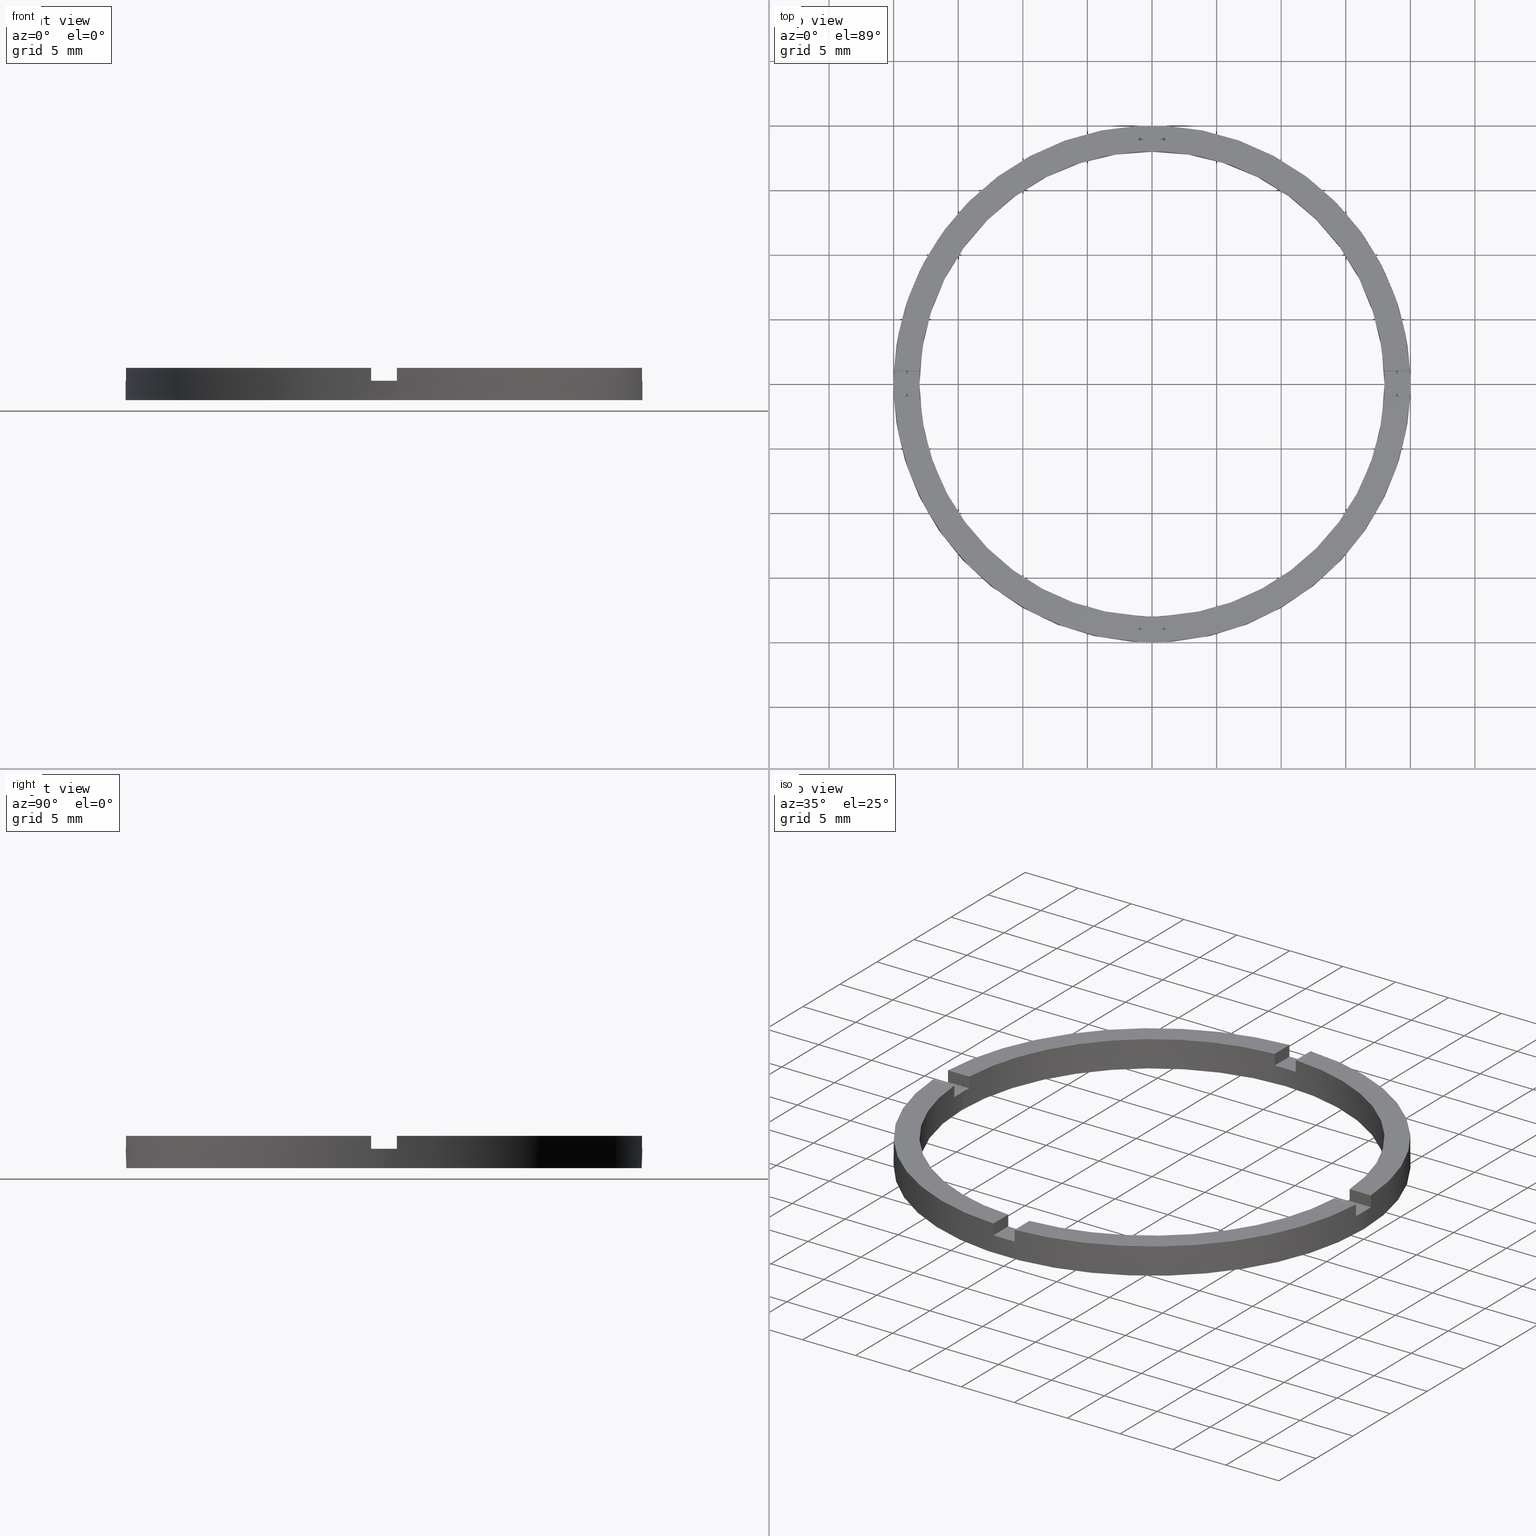
[diagram: canonical four-view strip — front | top / right | iso, engineering-drawing reading convention]
A machine part, canonical four-view strip (front | top / right | iso — engineering-drawing reading convention). The complete STEP part file that produces these views, byte-faithful:
ISO-10303-21;
HEADER;
FILE_DESCRIPTION (( 'STEP AP203' ),
    '1' );
FILE_NAME ('514085.step',
    '2024-12-26T02:36:06',
    ( 'MSI' ),
    ( '' ),
    'SwSTEP 2.0',
    'SolidWorks 2020',
    '' );
FILE_SCHEMA (( 'CONFIG_CONTROL_DESIGN' ));
ENDSEC;

DATA;
#1 = CARTESIAN_POINT ( 'NONE',  ( 0.000000000000000000, 0.000000000000000000, 2.500000000000000000 ) ) ;
#2 = DIRECTION ( 'NONE',  ( 1.000000000000000000, 1.734723475976807341E-16, -0.000000000000000000 ) ) ;
#3 = CALENDAR_DATE ( 2024, 26, 12 ) ;
#4 = CARTESIAN_POINT ( 'NONE',  ( -1.000000000000026867, 17.97220075561142494, 2.500000000000000000 ) ) ;
#5 = DATE_AND_TIME ( #266, #258 ) ;
#6 = APPROVAL_PERSON_ORGANIZATION ( #260, #700, #197 ) ;
#7 = DIRECTION ( 'NONE',  ( 1.000000000000000000, 1.734723475976807341E-16, -0.000000000000000000 ) ) ;
#8 =( NAMED_UNIT ( * ) SI_UNIT ( $, .STERADIAN. ) SOLID_ANGLE_UNIT ( ) );
#9 = DIRECTION ( 'NONE',  ( -1.301042606982605321E-16, 1.000000000000000000, -0.000000000000000000 ) ) ;
#10 = EDGE_CURVE ( 'NONE', #456, #740, #348, .T. ) ;
#11 = LOCAL_TIME ( 10, 36, 6.000000000000000000, #278 ) ;
#12 = CARTESIAN_POINT ( 'NONE',  ( 19.97498435543817408, -1.000000000000156986, 2.500000000000000000 ) ) ;
#13 = SECURITY_CLASSIFICATION_LEVEL ( 'unclassified' ) ;
#14 = ORIENTED_EDGE ( 'NONE', *, *, #460, .F. ) ;
#15 = ORIENTED_EDGE ( 'NONE', *, *, #510, .T. ) ;
#16 = APPROVAL_STATUS ( 'not_yet_approved' ) ;
#17 = ORIENTED_EDGE ( 'NONE', *, *, #79, .F. ) ;
#18 = VERTEX_POINT ( 'NONE', #668 ) ;
#19 = ORIENTED_EDGE ( 'NONE', *, *, #298, .F. ) ;
#20 = ORIENTED_EDGE ( 'NONE', *, *, #10, .T. ) ;
#21 = ORIENTED_EDGE ( 'NONE', *, *, #665, .F. ) ;
#22 = EDGE_LOOP ( 'NONE', ( #389, #550, #119, #274, #205, #46, #640, #208, #271, #748, #15, #320 ) ) ;
#23 = APPROVAL ( #564, 'δָ��' ) ;
#24 = EDGE_LOOP ( 'NONE', ( #387, #605, #125, #210 ) ) ;
#25 = ORIENTED_EDGE ( 'NONE', *, *, #392, .F. ) ;
#26 = DIRECTION ( 'NONE',  ( -0.000000000000000000, -0.000000000000000000, -1.000000000000000000 ) ) ;
#27 = ORIENTED_EDGE ( 'NONE', *, *, #646, .T. ) ;
#28 = VERTEX_POINT ( 'NONE', #368 ) ;
#29 = AXIS2_PLACEMENT_3D ( 'NONE', #415, #651, #95 ) ;
#30 = VERTEX_POINT ( 'NONE', #351 ) ;
#31 = EDGE_LOOP ( 'NONE', ( #725, #718, #322, #324, #473, #471 ) ) ;
#32 = CARTESIAN_POINT ( 'NONE',  ( -1.000000000000160760, -17.97220075561141783, 2.500000000000000000 ) ) ;
#33 = DIRECTION ( 'NONE',  ( 1.000000000000000000, 0.000000000000000000, 0.000000000000000000 ) ) ;
#34 = ORIENTED_EDGE ( 'NONE', *, *, #91, .F. ) ;
#35 = PLANE ( 'NONE',  #506 ) ;
#36 = ORIENTED_EDGE ( 'NONE', *, *, #191, .T. ) ;
#37 = FACE_OUTER_BOUND ( 'NONE', #307, .T. ) ;
#38 = ORIENTED_EDGE ( 'NONE', *, *, #106, .T. ) ;
#39 = CARTESIAN_POINT ( 'NONE',  ( 0.000000000000000000, 0.000000000000000000, 2.500000000000000000 ) ) ;
#40 = CARTESIAN_POINT ( 'NONE',  ( 0.9999999999998393507, -17.97220075561143560, 1.500000000000000000 ) ) ;
#41 = ORIENTED_EDGE ( 'NONE', *, *, #281, .T. ) ;
#42 = CARTESIAN_POINT ( 'NONE',  ( -17.97220075561142849, -1.000000000000025313, 2.500000000000000000 ) ) ;
#43 = PERSON_AND_ORGANIZATION ( #455, #310 ) ;
#44 = ORIENTED_EDGE ( 'NONE', *, *, #510, .F. ) ;
#45 = ORIENTED_EDGE ( 'NONE', *, *, #261, .F. ) ;
#46 = ORIENTED_EDGE ( 'NONE', *, *, #193, .F. ) ;
#47 = CARTESIAN_POINT ( 'NONE',  ( 0.000000000000000000, 0.000000000000000000, 1.500000000000000000 ) ) ;
#48 = ADVANCED_FACE ( 'NONE', ( #621 ), #385, .T. ) ;
#49 = ORIENTED_EDGE ( 'NONE', *, *, #225, .T. ) ;
#50 = VERTEX_POINT ( 'NONE', #316 ) ;
#51 = DIRECTION ( 'NONE',  ( 1.000000000000000000, 0.000000000000000000, 0.000000000000000000 ) ) ;
#52 = CARTESIAN_POINT ( 'NONE',  ( 19.97498435543818829, 0.9999999999998430145, 1.500000000000000000 ) ) ;
#53 = EDGE_CURVE ( 'NONE', #157, #456, #373, .T. ) ;
#54 = ADVANCED_FACE ( 'NONE', ( #354 ), #712, .F. ) ;
#55 = ORIENTED_EDGE ( 'NONE', *, *, #265, .F. ) ;
#56 = CARTESIAN_POINT ( 'NONE',  ( 0.9999999999998382405, -10.00000000000018119, 2.500000000000000000 ) ) ;
#57 = CARTESIAN_POINT ( 'NONE',  ( 0.000000000000000000, 0.000000000000000000, 1.500000000000000000 ) ) ;
#58 = DIRECTION ( 'NONE',  ( 1.000000000000000000, 0.000000000000000000, -0.000000000000000000 ) ) ;
#59 = AXIS2_PLACEMENT_3D ( 'NONE', #591, #442, #121 ) ;
#60 = CARTESIAN_POINT ( 'NONE',  ( 0.9999999999998395728, -19.97498435543818829, 2.500000000000000000 ) ) ;
#61 = PLANE ( 'NONE',  #519 ) ;
#62 = PRODUCT ( '514085', '514085', '', ( #203 ) ) ;
#63 = CARTESIAN_POINT ( 'NONE',  ( 0.9999999999998395728, -19.97498435543818829, 1.500000000000000000 ) ) ;
#64 = AXIS2_PLACEMENT_3D ( 'NONE', #237, #90, #357 ) ;
#65 = DIRECTION ( 'NONE',  ( -1.000000000000000000, 0.000000000000000000, 0.000000000000000000 ) ) ;
#66 = CARTESIAN_POINT ( 'NONE',  ( 20.00000000000000000, 2.449293598294706513E-15, 1.500000000000000000 ) ) ;
#67 = AXIS2_PLACEMENT_3D ( 'NONE', #761, #433, #58 ) ;
#68 = EDGE_CURVE ( 'NONE', #491, #502, #635, .T. ) ;
#69 = DIRECTION ( 'NONE',  ( -0.000000000000000000, -0.000000000000000000, -1.000000000000000000 ) ) ;
#70 = CARTESIAN_POINT ( 'NONE',  ( 20.00000000000000000, 2.449293598294706513E-15, 2.500000000000000000 ) ) ;
#71 = AXIS2_PLACEMENT_3D ( 'NONE', #361, #430, #499 ) ;
#72 = DIRECTION ( 'NONE',  ( 0.000000000000000000, 0.000000000000000000, 1.000000000000000000 ) ) ;
#73 = PERSON_AND_ORGANIZATION_ROLE ( 'classification_officer' ) ;
#74 = DIRECTION ( 'NONE',  ( 0.000000000000000000, 0.000000000000000000, 1.000000000000000000 ) ) ;
#75 = AXIS2_PLACEMENT_3D ( 'NONE', #57, #232, #775 ) ;
#76 = CARTESIAN_POINT ( 'NONE',  ( -10.00000000000018652, 0.9999999999999759082, 1.500000000000000000 ) ) ;
#77 = APPROVAL_STATUS ( 'not_yet_approved' ) ;
#78 = AXIS2_PLACEMENT_3D ( 'NONE', #538, #507, #65 ) ;
#79 = EDGE_CURVE ( 'NONE', #740, #223, #89, .T. ) ;
#80 = CARTESIAN_POINT ( 'NONE',  ( 0.000000000000000000, 0.000000000000000000, 2.500000000000000000 ) ) ;
#81 = CC_DESIGN_PERSON_AND_ORGANIZATION_ASSIGNMENT ( #766, #508, ( #470 ) ) ;
#82 = ADVANCED_FACE ( 'NONE', ( #350 ), #356, .T. ) ;
#83 = DIRECTION ( 'NONE',  ( -0.000000000000000000, -1.000000000000000000, -0.000000000000000000 ) ) ;
#84 = AXIS2_PLACEMENT_3D ( 'NONE', #224, #247, #402 ) ;
#85 = FACE_OUTER_BOUND ( 'NONE', #289, .T. ) ;
#86 = VECTOR ( 'NONE', #323, 1000.000000000000000 ) ;
#87 = SECURITY_CLASSIFICATION ( '', '', #13 ) ;
#88 = FACE_OUTER_BOUND ( 'NONE', #500, .T. ) ;
#89 = CIRCLE ( 'NONE', #515, 18.00000000000000000 ) ;
#90 = DIRECTION ( 'NONE',  ( 0.000000000000000000, 0.000000000000000000, 1.000000000000000000 ) ) ;
#91 = EDGE_CURVE ( 'NONE', #223, #740, #622, .T. ) ;
#92 = VECTOR ( 'NONE', #220, 1000.000000000000000 ) ;
#93 = PLANE ( 'NONE',  #644 ) ;
#94 = AXIS2_PLACEMENT_3D ( 'NONE', #231, #589, #187 ) ;
#95 = DIRECTION ( 'NONE',  ( 1.000000000000000000, 0.000000000000000000, 0.000000000000000000 ) ) ;
#96 = CARTESIAN_POINT ( 'NONE',  ( -1.000000000000026867, 19.97498435543817763, 2.500000000000000000 ) ) ;
#97 = FACE_OUTER_BOUND ( 'NONE', #459, .T. ) ;
#98 = CARTESIAN_POINT ( 'NONE',  ( 0.000000000000000000, 0.000000000000000000, 2.500000000000000000 ) ) ;
#99 = CIRCLE ( 'NONE', #75, 20.00000000000000000 ) ;
#100 = CARTESIAN_POINT ( 'NONE',  ( 0.9999999999998395728, -19.97498435543818829, 2.500000000000000000 ) ) ;
#101 = CARTESIAN_POINT ( 'NONE',  ( 0.000000000000000000, 0.000000000000000000, 1.500000000000000000 ) ) ;
#102 = ORIENTED_EDGE ( 'NONE', *, *, #10, .F. ) ;
#103 = CARTESIAN_POINT ( 'NONE',  ( 0.000000000000000000, 0.000000000000000000, 2.500000000000000000 ) ) ;
#104 = AXIS2_PLACEMENT_3D ( 'NONE', #439, #489, #598 ) ;
#105 = VECTOR ( 'NONE', #597, 1000.000000000000000 ) ;
#106 = EDGE_CURVE ( 'NONE', #704, #490, #379, .T. ) ;
#107 = CARTESIAN_POINT ( 'NONE',  ( 19.97498435543818829, 0.9999999999998430145, 2.500000000000000000 ) ) ;
#108 = FACE_BOUND ( 'NONE', #711, .T. ) ;
#109 = ORIENTED_EDGE ( 'NONE', *, *, #352, .T. ) ;
#110 = CARTESIAN_POINT ( 'NONE',  ( 0.9999999999998393507, -17.97220075561143560, 2.500000000000000000 ) ) ;
#111 = DIRECTION ( 'NONE',  ( 1.000000000000000000, 6.505213034913025371E-17, 0.000000000000000000 ) ) ;
#112 = CIRCLE ( 'NONE', #204, 18.00000000000000000 ) ;
#113 = PLANE ( 'NONE',  #206 ) ;
#114 = LINE ( 'NONE', #118, #383 ) ;
#115 = DIRECTION ( 'NONE',  ( -1.000000000000000000, 0.000000000000000000, 0.000000000000000000 ) ) ;
#116 = LINE ( 'NONE', #56, #358 ) ;
#117 = CARTESIAN_POINT ( 'NONE',  ( 0.000000000000000000, 0.000000000000000000, 1.500000000000000000 ) ) ;
#118 = CARTESIAN_POINT ( 'NONE',  ( -10.00000000000018652, -1.000000000000023981, 2.500000000000000000 ) ) ;
#119 = ORIENTED_EDGE ( 'NONE', *, *, #122, .T. ) ;
#120 = AXIS2_PLACEMENT_3D ( 'NONE', #594, #539, #360 ) ;
#121 = DIRECTION ( 'NONE',  ( 1.000000000000000000, 0.000000000000000000, 0.000000000000000000 ) ) ;
#122 = EDGE_CURVE ( 'NONE', #458, #707, #615, .T. ) ;
#123 = ORIENTED_EDGE ( 'NONE', *, *, #388, .F. ) ;
#124 = ORIENTED_EDGE ( 'NONE', *, *, #315, .F. ) ;
#125 = ORIENTED_EDGE ( 'NONE', *, *, #330, .F. ) ;
#126 = CARTESIAN_POINT ( 'NONE',  ( 0.000000000000000000, 0.000000000000000000, 0.000000000000000000 ) ) ;
#127 = ORIENTED_EDGE ( 'NONE', *, *, #747, .F. ) ;
#128 = CC_DESIGN_PERSON_AND_ORGANIZATION_ASSIGNMENT ( #43, #376, ( #62 ) ) ;
#129 = EDGE_CURVE ( 'NONE', #209, #431, #609, .T. ) ;
#130 = DIRECTION ( 'NONE',  ( 1.000000000000000000, 0.000000000000000000, 0.000000000000000000 ) ) ;
#131 = AXIS2_PLACEMENT_3D ( 'NONE', #780, #722, #194 ) ;
#132 = APPLICATION_PROTOCOL_DEFINITION ( 'international standard', 'config_control_design', 1994, #746 ) ;
#133 = DIRECTION ( 'NONE',  ( -0.000000000000000000, -0.000000000000000000, -1.000000000000000000 ) ) ;
#134 = VECTOR ( 'NONE', #276, 1000.000000000000000 ) ;
#135 = VECTOR ( 'NONE', #333, 1000.000000000000000 ) ;
#136 = AXIS2_PLACEMENT_3D ( 'NONE', #420, #653, #726 ) ;
#137 = LINE ( 'NONE', #773, #685 ) ;
#138 = VECTOR ( 'NONE', #340, 1000.000000000000000 ) ;
#139 = VECTOR ( 'NONE', #631, 1000.000000000000000 ) ;
#140 = VECTOR ( 'NONE', #222, 1000.000000000000000 ) ;
#141 = VECTOR ( 'NONE', #338, 1000.000000000000000 ) ;
#142 = EDGE_CURVE ( 'NONE', #458, #742, #608, .T. ) ;
#143 = FACE_OUTER_BOUND ( 'NONE', #452, .T. ) ;
#144 = LINE ( 'NONE', #581, #139 ) ;
#145 = CIRCLE ( 'NONE', #437, 20.00000000000000000 ) ;
#146 = VECTOR ( 'NONE', #639, 1000.000000000000000 ) ;
#147 = LINE ( 'NONE', #663, #161 ) ;
#148 = ADVANCED_FACE ( 'NONE', ( #88 ), #728, .T. ) ;
#149 = VECTOR ( 'NONE', #183, 1000.000000000000000 ) ;
#150 = CARTESIAN_POINT ( 'NONE',  ( 19.97498435543818829, 0.9999999999998430145, 2.500000000000000000 ) ) ;
#151 = CARTESIAN_POINT ( 'NONE',  ( -10.00000000000018652, 0.9999999999999759082, 1.500000000000000000 ) ) ;
#152 = EDGE_CURVE ( 'NONE', #214, #435, #616, .T. ) ;
#153 = LINE ( 'NONE', #672, #670 ) ;
#154 = FACE_OUTER_BOUND ( 'NONE', #553, .T. ) ;
#155 = LINE ( 'NONE', #151, #149 ) ;
#156 = CARTESIAN_POINT ( 'NONE',  ( 0.000000000000000000, 0.000000000000000000, 2.500000000000000000 ) ) ;
#157 = VERTEX_POINT ( 'NONE', #229 ) ;
#158 = LINE ( 'NONE', #548, #432 ) ;
#159 = LINE ( 'NONE', #318, #403 ) ;
#160 = ORIENTED_EDGE ( 'NONE', *, *, #592, .T. ) ;
#161 = VECTOR ( 'NONE', #268, 1000.000000000000000 ) ;
#162 = ADVANCED_FACE ( 'NONE', ( #85 ), #93, .F. ) ;
#163 = CC_DESIGN_APPROVAL ( #23, ( #470 ) ) ;
#164 = FACE_OUTER_BOUND ( 'NONE', #31, .T. ) ;
#165 = DIRECTION ( 'NONE',  ( -0.000000000000000000, -0.000000000000000000, -1.000000000000000000 ) ) ;
#166 = EDGE_CURVE ( 'NONE', #196, #277, #365, .T. ) ;
#167 = VECTOR ( 'NONE', #648, 1000.000000000000000 ) ;
#168 = LINE ( 'NONE', #505, #443 ) ;
#169 = VECTOR ( 'NONE', #371, 1000.000000000000000 ) ;
#170 = CARTESIAN_POINT ( 'NONE',  ( 0.000000000000000000, 0.000000000000000000, 1.500000000000000000 ) ) ;
#171 = DIRECTION ( 'NONE',  ( 0.000000000000000000, 0.000000000000000000, 1.000000000000000000 ) ) ;
#172 = VERTEX_POINT ( 'NONE', #481 ) ;
#173 = CIRCLE ( 'NONE', #618, 18.00000000000000000 ) ;
#174 = ORIENTED_EDGE ( 'NONE', *, *, #646, .F. ) ;
#175 = VERTEX_POINT ( 'NONE', #110 ) ;
#176 = FACE_OUTER_BOUND ( 'NONE', #484, .T. ) ;
#177 = ORIENTED_EDGE ( 'NONE', *, *, #367, .T. ) ;
#178 = CARTESIAN_POINT ( 'NONE',  ( -1.000000000000161871, -10.00000000000018119, 1.500000000000000000 ) ) ;
#179 = EDGE_LOOP ( 'NONE', ( #540, #109, #17, #102, #480, #212, #273, #541, #563, #384, #285, #283 ) ) ;
#180 = DIRECTION ( 'NONE',  ( -0.000000000000000000, -0.000000000000000000, -1.000000000000000000 ) ) ;
#181 = CARTESIAN_POINT ( 'NONE',  ( -19.97498435543818118, 0.9999999999999742428, 2.500000000000000000 ) ) ;
#182 = ORIENTED_EDGE ( 'NONE', *, *, #166, .F. ) ;
#183 = DIRECTION ( 'NONE',  ( -1.000000000000000000, -1.734723475976807341E-16, 0.000000000000000000 ) ) ;
#184 = PLANE ( 'NONE',  #71 ) ;
#185 = DIRECTION ( 'NONE',  ( 0.000000000000000000, 0.000000000000000000, 1.000000000000000000 ) ) ;
#186 = VERTEX_POINT ( 'NONE', #337 ) ;
#187 = DIRECTION ( 'NONE',  ( 1.000000000000000000, 0.000000000000000000, 0.000000000000000000 ) ) ;
#188 = VERTEX_POINT ( 'NONE', #476 ) ;
#189 = EDGE_LOOP ( 'NONE', ( #49, #756, #221, #182 ) ) ;
#190 = EDGE_LOOP ( 'NONE', ( #463, #497, #754, #536 ) ) ;
#191 = EDGE_CURVE ( 'NONE', #751, #186, #374, .T. ) ;
#192 = CARTESIAN_POINT ( 'NONE',  ( -18.00000000000000000, 0.000000000000000000, 0.000000000000000000 ) ) ;
#193 = EDGE_CURVE ( 'NONE', #186, #277, #99, .T. ) ;
#194 = DIRECTION ( 'NONE',  ( 1.000000000000000000, 0.000000000000000000, 0.000000000000000000 ) ) ;
#195 = DIRECTION ( 'NONE',  ( 1.000000000000000000, 0.000000000000000000, -0.000000000000000000 ) ) ;
#196 = VERTEX_POINT ( 'NONE', #100 ) ;
#197 = APPROVAL_ROLE ( '' ) ;
#198 = ORIENTED_EDGE ( 'NONE', *, *, #592, .F. ) ;
#199 = CARTESIAN_POINT ( 'NONE',  ( 19.97498435543817408, -1.000000000000156986, 1.500000000000000000 ) ) ;
#200 = CC_DESIGN_APPROVAL ( #693, ( #412 ) ) ;
#201 = DIRECTION ( 'NONE',  ( -1.734723475976807341E-16, 1.000000000000000000, 0.000000000000000000 ) ) ;
#202 = ORIENTED_EDGE ( 'NONE', *, *, #747, .T. ) ;
#203 = MECHANICAL_CONTEXT ( 'NONE', #746, 'mechanical' ) ;
#204 = AXIS2_PLACEMENT_3D ( 'NONE', #593, #657, #733 ) ;
#205 = ORIENTED_EDGE ( 'NONE', *, *, #166, .T. ) ;
#206 = AXIS2_PLACEMENT_3D ( 'NONE', #532, #494, #251 ) ;
#207 = ORIENTED_EDGE ( 'NONE', *, *, #735, .T. ) ;
#208 = ORIENTED_EDGE ( 'NONE', *, *, #400, .F. ) ;
#209 = VERTEX_POINT ( 'NONE', #306 ) ;
#210 = ORIENTED_EDGE ( 'NONE', *, *, #400, .T. ) ;
#211 = DIRECTION ( 'NONE',  ( -1.000000000000000000, 0.000000000000000000, 0.000000000000000000 ) ) ;
#212 = ORIENTED_EDGE ( 'NONE', *, *, #152, .F. ) ;
#213 = ORIENTED_EDGE ( 'NONE', *, *, #246, .F. ) ;
#214 = VERTEX_POINT ( 'NONE', #353 ) ;
#215 = ADVANCED_FACE ( 'NONE', ( #97, #108 ), #257, .F. ) ;
#216 = CARTESIAN_POINT ( 'NONE',  ( 17.97220075561143560, 0.9999999999998427924, 2.500000000000000000 ) ) ;
#217 = ORIENTED_EDGE ( 'NONE', *, *, #414, .T. ) ;
#218 = ORIENTED_EDGE ( 'NONE', *, *, #191, .F. ) ;
#219 = CARTESIAN_POINT ( 'NONE',  ( -1.000000000000026867, 19.97498435543817763, 2.500000000000000000 ) ) ;
#220 = DIRECTION ( 'NONE',  ( -0.000000000000000000, -0.000000000000000000, -1.000000000000000000 ) ) ;
#221 = ORIENTED_EDGE ( 'NONE', *, *, #367, .F. ) ;
#222 = DIRECTION ( 'NONE',  ( 0.000000000000000000, 0.000000000000000000, 1.000000000000000000 ) ) ;
#223 = VERTEX_POINT ( 'NONE', #603 ) ;
#224 = CARTESIAN_POINT ( 'NONE',  ( 0.000000000000000000, 0.000000000000000000, 1.500000000000000000 ) ) ;
#225 = EDGE_CURVE ( 'NONE', #196, #175, #116, .T. ) ;
#226 = ORIENTED_EDGE ( 'NONE', *, *, #779, .T. ) ;
#227 = VERTEX_POINT ( 'NONE', #181 ) ;
#228 = CARTESIAN_POINT ( 'NONE',  ( -1.000000000000160538, -19.97498435543817052, 2.500000000000000000 ) ) ;
#229 = CARTESIAN_POINT ( 'NONE',  ( -17.97220075561142849, 0.9999999999999746869, 1.500000000000000000 ) ) ;
#230 = DIRECTION ( 'NONE',  ( 0.000000000000000000, 0.000000000000000000, 1.000000000000000000 ) ) ;
#231 = CARTESIAN_POINT ( 'NONE',  ( 0.000000000000000000, 0.000000000000000000, 1.500000000000000000 ) ) ;
#232 = DIRECTION ( 'NONE',  ( -0.000000000000000000, 0.000000000000000000, 1.000000000000000000 ) ) ;
#233 = CALENDAR_DATE ( 2024, 26, 12 ) ;
#234 = AXIS2_PLACEMENT_3D ( 'NONE', #170, #483, #531 ) ;
#235 = DIRECTION ( 'NONE',  ( 1.000000000000000000, 0.000000000000000000, -0.000000000000000000 ) ) ;
#236 = PERSON_AND_ORGANIZATION ( #455, #310 ) ;
#237 = CARTESIAN_POINT ( 'NONE',  ( 0.000000000000000000, 0.000000000000000000, 1.500000000000000000 ) ) ;
#238 = APPROVAL_PERSON_ORGANIZATION ( #236, #693, #671 ) ;
#239 = COORDINATED_UNIVERSAL_TIME_OFFSET ( 8, 0, .AHEAD. ) ;
#240 = CARTESIAN_POINT ( 'NONE',  ( -18.00000000000000000, 0.000000000000000000, 2.500000000000000000 ) ) ;
#241 = CC_DESIGN_DATE_AND_TIME_ASSIGNMENT ( #522, #752, ( #87 ) ) ;
#242 = DIRECTION ( 'NONE',  ( 0.000000000000000000, 0.000000000000000000, 1.000000000000000000 ) ) ;
#243 =( LENGTH_UNIT ( ) NAMED_UNIT ( * ) SI_UNIT ( .MILLI., .METRE. ) );
#244 = PERSON_AND_ORGANIZATION ( #455, #310 ) ;
#245 = DIRECTION ( 'NONE',  ( -0.000000000000000000, -0.000000000000000000, -1.000000000000000000 ) ) ;
#246 = EDGE_CURVE ( 'NONE', #742, #741, #624, .T. ) ;
#247 = DIRECTION ( 'NONE',  ( 0.000000000000000000, 0.000000000000000000, 1.000000000000000000 ) ) ;
#248 = CALENDAR_DATE ( 2024, 26, 12 ) ;
#249 = DIRECTION ( 'NONE',  ( 0.000000000000000000, 0.000000000000000000, 1.000000000000000000 ) ) ;
#250 = AXIS2_PLACEMENT_3D ( 'NONE', #467, #475, #290 ) ;
#251 = DIRECTION ( 'NONE',  ( -1.301042606982605321E-16, 1.000000000000000000, 0.000000000000000000 ) ) ;
#252 = CARTESIAN_POINT ( 'NONE',  ( 17.97220075561141783, -1.000000000000157208, 2.500000000000000000 ) ) ;
#253 = AXIS2_PLACEMENT_3D ( 'NONE', #117, #344, #300 ) ;
#254 = APPLICATION_PROTOCOL_DEFINITION ( 'international standard', 'config_control_design', 1994, #607 ) ;
#255 = CALENDAR_DATE ( 2024, 26, 12 ) ;
#256 = EDGE_CURVE ( 'NONE', #755, #227, #372, .T. ) ;
#257 = PLANE ( 'NONE',  #709 ) ;
#258 = LOCAL_TIME ( 10, 36, 6.000000000000000000, #270 ) ;
#259 = DATE_TIME_ROLE ( 'creation_date' ) ;
#260 = PERSON_AND_ORGANIZATION ( #455, #310 ) ;
#261 = EDGE_CURVE ( 'NONE', #502, #435, #377, .T. ) ;
#262 = APPROVAL_DATE_TIME ( #5, #700 ) ;
#263 = AXIS2_PLACEMENT_3D ( 'NONE', #103, #731, #501 ) ;
#264 = DIRECTION ( 'NONE',  ( 0.000000000000000000, 0.000000000000000000, 1.000000000000000000 ) ) ;
#265 = EDGE_CURVE ( 'NONE', #28, #227, #613, .T. ) ;
#266 = CALENDAR_DATE ( 2024, 26, 12 ) ;
#267 = AXIS2_PLACEMENT_3D ( 'NONE', #39, #557, #466 ) ;
#268 = DIRECTION ( 'NONE',  ( -0.000000000000000000, -0.000000000000000000, -1.000000000000000000 ) ) ;
#269 = ORIENTED_EDGE ( 'NONE', *, *, #454, .T. ) ;
#270 = COORDINATED_UNIVERSAL_TIME_OFFSET ( 8, 0, .AHEAD. ) ;
#271 = ORIENTED_EDGE ( 'NONE', *, *, #68, .T. ) ;
#272 = DIRECTION ( 'NONE',  ( 0.000000000000000000, 0.000000000000000000, 1.000000000000000000 ) ) ;
#273 = ORIENTED_EDGE ( 'NONE', *, *, #299, .T. ) ;
#274 = ORIENTED_EDGE ( 'NONE', *, *, #572, .F. ) ;
#275 = CC_DESIGN_PERSON_AND_ORGANIZATION_ASSIGNMENT ( #772, #449, ( #412 ) ) ;
#276 = DIRECTION ( 'NONE',  ( -0.000000000000000000, -0.000000000000000000, -1.000000000000000000 ) ) ;
#277 = VERTEX_POINT ( 'NONE', #63 ) ;
#278 = COORDINATED_UNIVERSAL_TIME_OFFSET ( 8, 0, .AHEAD. ) ;
#279 = DIRECTION ( 'NONE',  ( -0.000000000000000000, -0.000000000000000000, -1.000000000000000000 ) ) ;
#280 = ORIENTED_EDGE ( 'NONE', *, *, #79, .T. ) ;
#281 = EDGE_CURVE ( 'NONE', #209, #458, #614, .T. ) ;
#282 = CARTESIAN_POINT ( 'NONE',  ( 0.9999999999998382405, -10.00000000000018119, 1.500000000000000000 ) ) ;
#283 = ORIENTED_EDGE ( 'NONE', *, *, #129, .F. ) ;
#284 = ADVANCED_FACE ( 'NONE', ( #346 ), #619, .F. ) ;
#285 = ORIENTED_EDGE ( 'NONE', *, *, #327, .T. ) ;
#286 = DIRECTION ( 'NONE',  ( 1.000000000000000000, 0.000000000000000000, 0.000000000000000000 ) ) ;
#287 = LINE ( 'NONE', #309, #545 ) ;
#288 = AXIS2_PLACEMENT_3D ( 'NONE', #398, #478, #51 ) ;
#289 = EDGE_LOOP ( 'NONE', ( #573, #745, #45, #567 ) ) ;
#290 = DIRECTION ( 'NONE',  ( 1.301042606982605321E-16, -1.000000000000000000, 0.000000000000000000 ) ) ;
#291 = VERTEX_POINT ( 'NONE', #228 ) ;
#292 = CARTESIAN_POINT ( 'NONE',  ( -1.000000000000160760, -17.97220075561141783, 2.500000000000000000 ) ) ;
#293 = CC_DESIGN_SECURITY_CLASSIFICATION ( #87, ( #412 ) ) ;
#294 = ORIENTED_EDGE ( 'NONE', *, *, #492, .F. ) ;
#295 = ORIENTED_EDGE ( 'NONE', *, *, #281, .F. ) ;
#296 = ADVANCED_FACE ( 'NONE', ( #628 ), #347, .T. ) ;
#297 = VERTEX_POINT ( 'NONE', #107 ) ;
#298 = EDGE_CURVE ( 'NONE', #504, #50, #370, .T. ) ;
#299 = EDGE_CURVE ( 'NONE', #214, #488, #375, .T. ) ;
#300 = DIRECTION ( 'NONE',  ( 1.000000000000000000, 0.000000000000000000, -0.000000000000000000 ) ) ;
#301 = ORIENTED_EDGE ( 'NONE', *, *, #142, .T. ) ;
#302 = ORIENTED_EDGE ( 'NONE', *, *, #339, .T. ) ;
#303 = CARTESIAN_POINT ( 'NONE',  ( -1.000000000000026867, 10.00000000000000000, 1.500000000000000000 ) ) ;
#304 = ORIENTED_EDGE ( 'NONE', *, *, #352, .F. ) ;
#305 = EDGE_LOOP ( 'NONE', ( #643, #317, #479, #568 ) ) ;
#306 = CARTESIAN_POINT ( 'NONE',  ( 17.97220075561141783, -1.000000000000157208, 1.500000000000000000 ) ) ;
#307 = EDGE_LOOP ( 'NONE', ( #546, #555, #611, #363 ) ) ;
#308 = VERTEX_POINT ( 'NONE', #496 ) ;
#309 = CARTESIAN_POINT ( 'NONE',  ( -1.000000000000161871, -10.00000000000018119, 2.500000000000000000 ) ) ;
#310 = ORGANIZATION ( 'δָ��', 'δָ��', '' ) ;
#311 = ORIENTED_EDGE ( 'NONE', *, *, #771, .F. ) ;
#312 = PERSON_AND_ORGANIZATION ( #455, #310 ) ;
#313 = EDGE_CURVE ( 'NONE', #172, #535, #112, .T. ) ;
#314 = ORIENTED_EDGE ( 'NONE', *, *, #193, .T. ) ;
#315 = EDGE_CURVE ( 'NONE', #18, #730, #380, .T. ) ;
#316 = CARTESIAN_POINT ( 'NONE',  ( -1.000000000000026867, 19.97498435543817763, 1.500000000000000000 ) ) ;
#317 = ORIENTED_EDGE ( 'NONE', *, *, #771, .T. ) ;
#318 = CARTESIAN_POINT ( 'NONE',  ( 0.9999999999998393507, -17.97220075561143560, 2.500000000000000000 ) ) ;
#319 = PLANE ( 'NONE',  #559 ) ;
#320 = ORIENTED_EDGE ( 'NONE', *, *, #486, .T. ) ;
#321 = CARTESIAN_POINT ( 'NONE',  ( -10.00000000000018652, -1.000000000000023981, 1.500000000000000000 ) ) ;
#322 = ORIENTED_EDGE ( 'NONE', *, *, #261, .T. ) ;
#323 = DIRECTION ( 'NONE',  ( -0.000000000000000000, -0.000000000000000000, -1.000000000000000000 ) ) ;
#324 = ORIENTED_EDGE ( 'NONE', *, *, #583, .F. ) ;
#325 =( GEOMETRIC_REPRESENTATION_CONTEXT ( 3 ) GLOBAL_UNCERTAINTY_ASSIGNED_CONTEXT ( ( #636 ) ) GLOBAL_UNIT_ASSIGNED_CONTEXT ( ( #243, #362, #8 ) ) REPRESENTATION_CONTEXT ( 'NONE', 'WORKASPACE' ) );
#326 = CARTESIAN_POINT ( 'NONE',  ( 9.999999999999994671, 0.9999999999998423483, 2.500000000000000000 ) ) ;
#327 = EDGE_CURVE ( 'NONE', #175, #431, #632, .T. ) ;
#328 = DIRECTION ( 'NONE',  ( 0.000000000000000000, 0.000000000000000000, 1.000000000000000000 ) ) ;
#329 = APPROVAL_ROLE ( '' ) ;
#330 = EDGE_CURVE ( 'NONE', #491, #214, #114, .T. ) ;
#331 = PLANE ( 'NONE',  #524 ) ;
#332 = DIRECTION ( 'NONE',  ( 1.000000000000000000, 0.000000000000000000, -0.000000000000000000 ) ) ;
#333 = DIRECTION ( 'NONE',  ( -0.000000000000000000, -0.000000000000000000, -1.000000000000000000 ) ) ;
#334 = EDGE_CURVE ( 'NONE', #175, #552, #159, .T. ) ;
#335 = ADVANCED_FACE ( 'NONE', ( #401 ), #184, .F. ) ;
#336 = DIRECTION ( 'NONE',  ( -0.000000000000000000, -0.000000000000000000, -1.000000000000000000 ) ) ;
#337 = CARTESIAN_POINT ( 'NONE',  ( -1.000000000000160538, -19.97498435543817052, 1.500000000000000000 ) ) ;
#338 = DIRECTION ( 'NONE',  ( -1.301042606982605321E-16, 1.000000000000000000, -0.000000000000000000 ) ) ;
#339 = EDGE_CURVE ( 'NONE', #704, #713, #438, .T. ) ;
#340 = DIRECTION ( 'NONE',  ( 0.000000000000000000, 0.000000000000000000, 1.000000000000000000 ) ) ;
#341 = CARTESIAN_POINT ( 'NONE',  ( 0.000000000000000000, 0.000000000000000000, 0.000000000000000000 ) ) ;
#342 = AXIS2_PLACEMENT_3D ( 'NONE', #729, #242, #737 ) ;
#343 = CARTESIAN_POINT ( 'NONE',  ( 9.999999999999994671, 0.9999999999998423483, 1.500000000000000000 ) ) ;
#344 = DIRECTION ( 'NONE',  ( 0.000000000000000000, -0.000000000000000000, 1.000000000000000000 ) ) ;
#345 = DIRECTION ( 'NONE',  ( -1.000000000000000000, -6.505213034913025371E-17, -0.000000000000000000 ) ) ;
#346 = FACE_OUTER_BOUND ( 'NONE', #179, .T. ) ;
#347 = PLANE ( 'NONE',  #64 ) ;
#348 = LINE ( 'NONE', #240, #86 ) ;
#349 = PLANE ( 'NONE',  #136 ) ;
#350 = FACE_OUTER_BOUND ( 'NONE', #543, .T. ) ;
#351 = CARTESIAN_POINT ( 'NONE',  ( -20.00000000000000000, 0.000000000000000000, 0.000000000000000000 ) ) ;
#352 = EDGE_CURVE ( 'NONE', #172, #223, #436, .T. ) ;
#353 = CARTESIAN_POINT ( 'NONE',  ( -17.97220075561142849, -1.000000000000025313, 2.500000000000000000 ) ) ;
#354 = FACE_OUTER_BOUND ( 'NONE', #305, .T. ) ;
#355 = DIRECTION ( 'NONE',  ( 1.301042606982605321E-16, -1.000000000000000000, 0.000000000000000000 ) ) ;
#356 = CYLINDRICAL_SURFACE ( 'NONE', #580, 20.00000000000000000 ) ;
#357 = DIRECTION ( 'NONE',  ( 1.000000000000000000, 0.000000000000000000, -0.000000000000000000 ) ) ;
#358 = VECTOR ( 'NONE', #9, 1000.000000000000000 ) ;
#359 = VECTOR ( 'NONE', #551, 1000.000000000000000 ) ;
#360 = DIRECTION ( 'NONE',  ( 1.000000000000000000, 0.000000000000000000, 0.000000000000000000 ) ) ;
#361 = CARTESIAN_POINT ( 'NONE',  ( 0.9999999999999731326, 10.00000000000000000, 1.500000000000000000 ) ) ;
#362 =( NAMED_UNIT ( * ) PLANE_ANGLE_UNIT ( ) SI_UNIT ( $, .RADIAN. ) );
#363 = ORIENTED_EDGE ( 'NONE', *, *, #572, .T. ) ;
#364 = CARTESIAN_POINT ( 'NONE',  ( -19.97498435543818118, -1.000000000000025757, 1.500000000000000000 ) ) ;
#365 = LINE ( 'NONE', #60, #617 ) ;
#366 = EDGE_CURVE ( 'NONE', #431, #707, #661, .T. ) ;
#367 = EDGE_CURVE ( 'NONE', #277, #552, #679, .T. ) ;
#368 = CARTESIAN_POINT ( 'NONE',  ( -17.97220075561142849, 0.9999999999999746869, 2.500000000000000000 ) ) ;
#369 = DIRECTION ( 'NONE',  ( -1.000000000000000000, 0.000000000000000000, 0.000000000000000000 ) ) ;
#370 = CIRCLE ( 'NONE', #94, 20.00000000000000000 ) ;
#371 = DIRECTION ( 'NONE',  ( -0.000000000000000000, -1.000000000000000000, -0.000000000000000000 ) ) ;
#372 = CIRCLE ( 'NONE', #390, 20.00000000000000000 ) ;
#373 = CIRCLE ( 'NONE', #104, 18.00000000000000000 ) ;
#374 = LINE ( 'NONE', #178, #626 ) ;
#375 = CIRCLE ( 'NONE', #464, 18.00000000000000000 ) ;
#376 = PERSON_AND_ORGANIZATION_ROLE ( 'design_owner' ) ;
#377 = LINE ( 'NONE', #321, #633 ) ;
#378 = DIRECTION ( 'NONE',  ( 0.000000000000000000, 0.000000000000000000, 1.000000000000000000 ) ) ;
#379 = CIRCLE ( 'NONE', #769, 18.00000000000000000 ) ;
#380 = CIRCLE ( 'NONE', #84, 20.00000000000000000 ) ;
#381 = DIRECTION ( 'NONE',  ( -1.000000000000000000, -1.734723475976807341E-16, 0.000000000000000000 ) ) ;
#382 = AXIS2_PLACEMENT_3D ( 'NONE', #98, #165, #115 ) ;
#383 = VECTOR ( 'NONE', #7, 1000.000000000000000 ) ;
#384 = ORIENTED_EDGE ( 'NONE', *, *, #334, .F. ) ;
#385 = CYLINDRICAL_SURFACE ( 'NONE', #78, 20.00000000000000000 ) ;
#386 = ORIENTED_EDGE ( 'NONE', *, *, #447, .F. ) ;
#387 = ORIENTED_EDGE ( 'NONE', *, *, #779, .F. ) ;
#388 = EDGE_CURVE ( 'NONE', #755, #727, #683, .T. ) ;
#389 = ORIENTED_EDGE ( 'NONE', *, *, #760, .F. ) ;
#390 = AXIS2_PLACEMENT_3D ( 'NONE', #533, #425, #529 ) ;
#391 = DIRECTION ( 'NONE',  ( -1.000000000000000000, -6.505213034913025371E-17, 0.000000000000000000 ) ) ;
#392 = EDGE_CURVE ( 'NONE', #751, #552, #419, .T. ) ;
#393 = DIRECTION ( 'NONE',  ( 0.000000000000000000, 0.000000000000000000, 1.000000000000000000 ) ) ;
#394 = FACE_OUTER_BOUND ( 'NONE', #637, .T. ) ;
#395 = DIRECTION ( 'NONE',  ( 1.734723475976807341E-16, -1.000000000000000000, 0.000000000000000000 ) ) ;
#396 = LINE ( 'NONE', #292, #138 ) ;
#397 = ADVANCED_FACE ( 'NONE', ( #164 ), #35, .T. ) ;
#398 = CARTESIAN_POINT ( 'NONE',  ( 0.000000000000000000, 0.000000000000000000, 2.500000000000000000 ) ) ;
#399 = FACE_OUTER_BOUND ( 'NONE', #190, .T. ) ;
#400 = EDGE_CURVE ( 'NONE', #491, #291, #410, .T. ) ;
#401 = FACE_OUTER_BOUND ( 'NONE', #710, .T. ) ;
#402 = DIRECTION ( 'NONE',  ( 1.000000000000000000, 0.000000000000000000, 0.000000000000000000 ) ) ;
#403 = VECTOR ( 'NONE', #69, 1000.000000000000000 ) ;
#404 = PLANE ( 'NONE',  #250 ) ;
#405 = DIRECTION ( 'NONE',  ( 1.000000000000000000, 1.734723475976807341E-16, 0.000000000000000000 ) ) ;
#406 = VECTOR ( 'NONE', #584, 1000.000000000000000 ) ;
#407 = CARTESIAN_POINT ( 'NONE',  ( 9.999999999999994671, -1.000000000000157652, 2.500000000000000000 ) ) ;
#408 = CIRCLE ( 'NONE', #267, 20.00000000000000000 ) ;
#409 = DIRECTION ( 'NONE',  ( 0.000000000000000000, 0.000000000000000000, 1.000000000000000000 ) ) ;
#410 = CIRCLE ( 'NONE', #288, 20.00000000000000000 ) ;
#411 = CARTESIAN_POINT ( 'NONE',  ( 0.000000000000000000, 0.000000000000000000, 1.500000000000000000 ) ) ;
#412 = PRODUCT_DEFINITION_FORMATION_WITH_SPECIFIED_SOURCE ( '�κ�', '', #62, .NOT_KNOWN. ) ;
#413 = LINE ( 'NONE', #219, #134 ) ;
#414 = EDGE_CURVE ( 'NONE', #751, #488, #396, .T. ) ;
#415 = CARTESIAN_POINT ( 'NONE',  ( 0.000000000000000000, 0.000000000000000000, 1.500000000000000000 ) ) ;
#416 = VECTOR ( 'NONE', #245, 1000.000000000000000 ) ;
#417 = DIRECTION ( 'NONE',  ( 1.000000000000000000, 0.000000000000000000, 0.000000000000000000 ) ) ;
#418 = AXIS2_PLACEMENT_3D ( 'NONE', #47, #474, #525 ) ;
#419 = CIRCLE ( 'NONE', #29, 18.00000000000000000 ) ;
#420 = CARTESIAN_POINT ( 'NONE',  ( -1.000000000000026867, 10.00000000000000000, 1.500000000000000000 ) ) ;
#421 = FACE_OUTER_BOUND ( 'NONE', #493, .T. ) ;
#422 = CARTESIAN_POINT ( 'NONE',  ( -1.000000000000026867, 10.00000000000000000, 2.500000000000000000 ) ) ;
#423 = FACE_OUTER_BOUND ( 'NONE', #24, .T. ) ;
#424 = CIRCLE ( 'NONE', #654, 18.00000000000000000 ) ;
#425 = DIRECTION ( 'NONE',  ( 0.000000000000000000, 0.000000000000000000, 1.000000000000000000 ) ) ;
#426 = CC_DESIGN_PERSON_AND_ORGANIZATION_ASSIGNMENT ( #244, #678, ( #412 ) ) ;
#427 = VECTOR ( 'NONE', #776, 1000.000000000000000 ) ;
#428 = EDGE_CURVE ( 'NONE', #209, #172, #681, .T. ) ;
#429 = CIRCLE ( 'NONE', #263, 18.00000000000000000 ) ;
#430 = DIRECTION ( 'NONE',  ( 1.000000000000000000, -0.000000000000000000, 0.000000000000000000 ) ) ;
#431 = VERTEX_POINT ( 'NONE', #647 ) ;
#432 = VECTOR ( 'NONE', #171, 1000.000000000000000 ) ;
#433 = DIRECTION ( 'NONE',  ( 0.000000000000000000, 0.000000000000000000, 1.000000000000000000 ) ) ;
#434 = ORIENTED_EDGE ( 'NONE', *, *, #298, .T. ) ;
#435 = VERTEX_POINT ( 'NONE', #714 ) ;
#436 = LINE ( 'NONE', #634, #406 ) ;
#437 = AXIS2_PLACEMENT_3D ( 'NONE', #762, #393, #630 ) ;
#438 = LINE ( 'NONE', #595, #140 ) ;
#439 = CARTESIAN_POINT ( 'NONE',  ( 0.000000000000000000, 0.000000000000000000, 1.500000000000000000 ) ) ;
#440 = LINE ( 'NONE', #150, #416 ) ;
#441 = LINE ( 'NONE', #303, #169 ) ;
#442 = DIRECTION ( 'NONE',  ( 0.000000000000000000, 0.000000000000000000, 1.000000000000000000 ) ) ;
#443 = VECTOR ( 'NONE', #230, 1000.000000000000000 ) ;
#444 = EDGE_CURVE ( 'NONE', #457, #30, #664, .T. ) ;
#445 = LINE ( 'NONE', #326, #691 ) ;
#446 = DESIGN_CONTEXT ( 'detailed design', #607, 'design' ) ;
#447 = EDGE_CURVE ( 'NONE', #297, #308, #408, .T. ) ;
#448 = LINE ( 'NONE', #70, #696 ) ;
#449 = PERSON_AND_ORGANIZATION_ROLE ( 'creator' ) ;
#450 = ORIENTED_EDGE ( 'NONE', *, *, #454, .F. ) ;
#451 = DIRECTION ( 'NONE',  ( 1.000000000000000000, 0.000000000000000000, 0.000000000000000000 ) ) ;
#452 = EDGE_LOOP ( 'NONE', ( #537, #21, #565, #566 ) ) ;
#453 = ORIENTED_EDGE ( 'NONE', *, *, #366, .T. ) ;
#454 = EDGE_CURVE ( 'NONE', #504, #308, #153, .T. ) ;
#455 = PERSON ( 'δָ��', 'δָ��', 'δָ��', ('δָ��'), ('δָ��'), ('δָ��') ) ;
#456 = VERTEX_POINT ( 'NONE', #549 ) ;
#457 = VERTEX_POINT ( 'NONE', #513 ) ;
#458 = VERTEX_POINT ( 'NONE', #199 ) ;
#459 = EDGE_LOOP ( 'NONE', ( #736, #738 ) ) ;
#460 = EDGE_CURVE ( 'NONE', #727, #490, #147, .T. ) ;
#461 = EDGE_LOOP ( 'NONE', ( #207, #160, #706, #294 ) ) ;
#462 = CARTESIAN_POINT ( 'NONE',  ( 9.999999999999994671, -1.000000000000157652, 1.500000000000000000 ) ) ;
#463 = ORIENTED_EDGE ( 'NONE', *, *, #388, .T. ) ;
#464 = AXIS2_PLACEMENT_3D ( 'NONE', #156, #542, #652 ) ;
#465 = ORIENTED_EDGE ( 'NONE', *, *, #246, .T. ) ;
#466 = DIRECTION ( 'NONE',  ( 1.000000000000000000, 0.000000000000000000, 0.000000000000000000 ) ) ;
#467 = CARTESIAN_POINT ( 'NONE',  ( -1.000000000000161871, -10.00000000000018119, 1.500000000000000000 ) ) ;
#468 = ORIENTED_EDGE ( 'NONE', *, *, #313, .T. ) ;
#469 = DIRECTION ( 'NONE',  ( 1.000000000000000000, 0.000000000000000000, -0.000000000000000000 ) ) ;
#470 = PRODUCT_DEFINITION ( 'δ֪', '', #412, #446 ) ;
#471 = ORIENTED_EDGE ( 'NONE', *, *, #602, .T. ) ;
#472 = ADVANCED_FACE ( 'NONE', ( #154 ), #675, .F. ) ;
#473 = ORIENTED_EDGE ( 'NONE', *, *, #53, .F. ) ;
#474 = DIRECTION ( 'NONE',  ( -0.000000000000000000, 0.000000000000000000, 1.000000000000000000 ) ) ;
#475 = DIRECTION ( 'NONE',  ( -1.000000000000000000, -1.301042606982605321E-16, 0.000000000000000000 ) ) ;
#476 = CARTESIAN_POINT ( 'NONE',  ( 17.97220075561143560, 0.9999999999998427924, 2.500000000000000000 ) ) ;
#477 = ORIENTED_EDGE ( 'NONE', *, *, #760, .T. ) ;
#478 = DIRECTION ( 'NONE',  ( 0.000000000000000000, 0.000000000000000000, 1.000000000000000000 ) ) ;
#479 = ORIENTED_EDGE ( 'NONE', *, *, #265, .T. ) ;
#480 = ORIENTED_EDGE ( 'NONE', *, *, #583, .T. ) ;
#481 = CARTESIAN_POINT ( 'NONE',  ( 18.00000000000000000, 2.204364238465235428E-15, 1.500000000000000000 ) ) ;
#482 = ADVANCED_FACE ( 'NONE', ( #143 ), #518, .T. ) ;
#483 = DIRECTION ( 'NONE',  ( 0.000000000000000000, 0.000000000000000000, 1.000000000000000000 ) ) ;
#484 = EDGE_LOOP ( 'NONE', ( #123, #642, #55, #127 ) ) ;
#485 = CARTESIAN_POINT ( 'NONE',  ( 0.9999999999999731326, 17.97220075561142849, 2.500000000000000000 ) ) ;
#486 = EDGE_CURVE ( 'NONE', #30, #457, #145, .T. ) ;
#487 = PRODUCT_DEFINITION_SHAPE ( 'NONE', 'NONE',  #470 ) ;
#488 = VERTEX_POINT ( 'NONE', #32 ) ;
#489 = DIRECTION ( 'NONE',  ( 0.000000000000000000, 0.000000000000000000, 1.000000000000000000 ) ) ;
#490 = VERTEX_POINT ( 'NONE', #521 ) ;
#491 = VERTEX_POINT ( 'NONE', #699 ) ;
#492 = EDGE_CURVE ( 'NONE', #297, #741, #440, .T. ) ;
#493 = EDGE_LOOP ( 'NONE', ( #218, #217, #226, #695 ) ) ;
#494 = DIRECTION ( 'NONE',  ( 1.000000000000000000, 1.301042606982605321E-16, 0.000000000000000000 ) ) ;
#495 = ORIENTED_EDGE ( 'NONE', *, *, #547, .T. ) ;
#496 = CARTESIAN_POINT ( 'NONE',  ( 0.9999999999999731326, 19.97498435543818118, 2.500000000000000000 ) ) ;
#497 = ORIENTED_EDGE ( 'NONE', *, *, #460, .T. ) ;
#498 = ORIENTED_EDGE ( 'NONE', *, *, #129, .T. ) ;
#499 = DIRECTION ( 'NONE',  ( 0.000000000000000000, 0.000000000000000000, -1.000000000000000000 ) ) ;
#500 = EDGE_LOOP ( 'NONE', ( #434, #561, #575, #27 ) ) ;
#501 = DIRECTION ( 'NONE',  ( 1.000000000000000000, 0.000000000000000000, 0.000000000000000000 ) ) ;
#502 = VERTEX_POINT ( 'NONE', #364 ) ;
#503 = APPROVAL_DATE_TIME ( #509, #23 ) ;
#504 = VERTEX_POINT ( 'NONE', #585 ) ;
#505 = CARTESIAN_POINT ( 'NONE',  ( -1.000000000000160538, -19.97498435543817052, 2.500000000000000000 ) ) ;
#506 = AXIS2_PLACEMENT_3D ( 'NONE', #101, #272, #469 ) ;
#507 = DIRECTION ( 'NONE',  ( -0.000000000000000000, -0.000000000000000000, -1.000000000000000000 ) ) ;
#508 = PERSON_AND_ORGANIZATION_ROLE ( 'creator' ) ;
#509 = DATE_AND_TIME ( #255, #517 ) ;
#510 = EDGE_CURVE ( 'NONE', #730, #30, #137, .T. ) ;
#511 = LOCAL_TIME ( 10, 36, 6.000000000000000000, #239 ) ;
#512 = APPROVAL_DATE_TIME ( #770, #693 ) ;
#513 = CARTESIAN_POINT ( 'NONE',  ( 20.00000000000000000, 2.449293598294706513E-15, 0.000000000000000000 ) ) ;
#514 = COORDINATED_UNIVERSAL_TIME_OFFSET ( 8, 0, .AHEAD. ) ;
#515 = AXIS2_PLACEMENT_3D ( 'NONE', #562, #604, #451 ) ;
#516 = EDGE_CURVE ( 'NONE', #755, #50, #413, .T. ) ;
#517 = LOCAL_TIME ( 10, 36, 6.000000000000000000, #514 ) ;
#518 = PLANE ( 'NONE',  #576 ) ;
#519 = AXIS2_PLACEMENT_3D ( 'NONE', #662, #185, #235 ) ;
#520 = ADVANCED_FACE ( 'NONE', ( #658 ), #701, .T. ) ;
#521 = CARTESIAN_POINT ( 'NONE',  ( -1.000000000000026867, 17.97220075561142494, 1.500000000000000000 ) ) ;
#522 = DATE_AND_TIME ( #3, #11 ) ;
#523 = DIRECTION ( 'NONE',  ( 6.505213034913025371E-17, -1.000000000000000000, 0.000000000000000000 ) ) ;
#524 = AXIS2_PLACEMENT_3D ( 'NONE', #462, #523, #579 ) ;
#525 = DIRECTION ( 'NONE',  ( 1.000000000000000000, 0.000000000000000000, 0.000000000000000000 ) ) ;
#526 = ADVANCED_FACE ( 'NONE', ( #677 ), #778, .F. ) ;
#527 = DIRECTION ( 'NONE',  ( 1.301042606982605321E-16, -1.000000000000000000, 0.000000000000000000 ) ) ;
#528 = SHAPE_DEFINITION_REPRESENTATION ( #487, #649 ) ;
#529 = DIRECTION ( 'NONE',  ( 1.000000000000000000, 0.000000000000000000, 0.000000000000000000 ) ) ;
#530 = ADVANCED_FACE ( 'NONE', ( #421 ), #404, .F. ) ;
#531 = DIRECTION ( 'NONE',  ( 1.000000000000000000, 0.000000000000000000, 0.000000000000000000 ) ) ;
#532 = CARTESIAN_POINT ( 'NONE',  ( 0.9999999999998382405, -10.00000000000018119, 1.500000000000000000 ) ) ;
#533 = CARTESIAN_POINT ( 'NONE',  ( 0.000000000000000000, 0.000000000000000000, 2.500000000000000000 ) ) ;
#534 = CARTESIAN_POINT ( 'NONE',  ( 19.97498435543817408, -1.000000000000156986, 2.500000000000000000 ) ) ;
#535 = VERTEX_POINT ( 'NONE', #719 ) ;
#536 = ORIENTED_EDGE ( 'NONE', *, *, #516, .F. ) ;
#537 = ORIENTED_EDGE ( 'NONE', *, *, #547, .F. ) ;
#538 = CARTESIAN_POINT ( 'NONE',  ( 0.000000000000000000, 0.000000000000000000, 2.500000000000000000 ) ) ;
#539 = DIRECTION ( 'NONE',  ( 0.000000000000000000, 0.000000000000000000, 1.000000000000000000 ) ) ;
#540 = ORIENTED_EDGE ( 'NONE', *, *, #428, .T. ) ;
#541 = ORIENTED_EDGE ( 'NONE', *, *, #414, .F. ) ;
#542 = DIRECTION ( 'NONE',  ( 0.000000000000000000, 0.000000000000000000, 1.000000000000000000 ) ) ;
#543 = EDGE_LOOP ( 'NONE', ( #213, #477, #717, #44, #124, #558, #641, #732, #19, #269, #386, #544 ) ) ;
#544 = ORIENTED_EDGE ( 'NONE', *, *, #492, .T. ) ;
#545 = VECTOR ( 'NONE', #355, 1000.000000000000000 ) ;
#546 = ORIENTED_EDGE ( 'NONE', *, *, #366, .F. ) ;
#547 = EDGE_CURVE ( 'NONE', #713, #308, #673, .T. ) ;
#548 = CARTESIAN_POINT ( 'NONE',  ( -19.97498435543818118, 0.9999999999999742428, 2.500000000000000000 ) ) ;
#549 = CARTESIAN_POINT ( 'NONE',  ( -18.00000000000000000, 0.000000000000000000, 1.500000000000000000 ) ) ;
#550 = ORIENTED_EDGE ( 'NONE', *, *, #142, .F. ) ;
#551 = DIRECTION ( 'NONE',  ( -1.000000000000000000, -1.734723475976807341E-16, 0.000000000000000000 ) ) ;
#552 = VERTEX_POINT ( 'NONE', #40 ) ;
#553 = EDGE_LOOP ( 'NONE', ( #304, #468, #198, #571, #574, #38, #14, #202, #311, #577, #20, #34 ) ) ;
#554 = DIRECTION ( 'NONE',  ( 1.000000000000000000, 0.000000000000000000, 0.000000000000000000 ) ) ;
#555 = ORIENTED_EDGE ( 'NONE', *, *, #327, .F. ) ;
#556 = DIRECTION ( 'NONE',  ( 0.000000000000000000, 0.000000000000000000, 1.000000000000000000 ) ) ;
#557 = DIRECTION ( 'NONE',  ( 0.000000000000000000, 0.000000000000000000, 1.000000000000000000 ) ) ;
#558 = ORIENTED_EDGE ( 'NONE', *, *, #686, .T. ) ;
#559 = AXIS2_PLACEMENT_3D ( 'NONE', #716, #556, #601 ) ;
#560 = ORIENTED_EDGE ( 'NONE', *, *, #428, .F. ) ;
#561 = ORIENTED_EDGE ( 'NONE', *, *, #721, .T. ) ;
#562 = CARTESIAN_POINT ( 'NONE',  ( 0.000000000000000000, 0.000000000000000000, 0.000000000000000000 ) ) ;
#563 = ORIENTED_EDGE ( 'NONE', *, *, #392, .T. ) ;
#564 = APPROVAL_STATUS ( 'not_yet_approved' ) ;
#565 = ORIENTED_EDGE ( 'NONE', *, *, #735, .F. ) ;
#566 = ORIENTED_EDGE ( 'NONE', *, *, #447, .T. ) ;
#567 = ORIENTED_EDGE ( 'NONE', *, *, #68, .F. ) ;
#568 = ORIENTED_EDGE ( 'NONE', *, *, #686, .F. ) ;
#569 = CC_DESIGN_PERSON_AND_ORGANIZATION_ASSIGNMENT ( #774, #73, ( #87 ) ) ;
#570 = APPROVAL_PERSON_ORGANIZATION ( #312, #23, #329 ) ;
#571 = ORIENTED_EDGE ( 'NONE', *, *, #665, .T. ) ;
#572 = EDGE_CURVE ( 'NONE', #196, #707, #667, .T. ) ;
#573 = ORIENTED_EDGE ( 'NONE', *, *, #330, .T. ) ;
#574 = ORIENTED_EDGE ( 'NONE', *, *, #339, .F. ) ;
#575 = ORIENTED_EDGE ( 'NONE', *, *, #106, .F. ) ;
#576 = AXIS2_PLACEMENT_3D ( 'NONE', #578, #692, #332 ) ;
#577 = ORIENTED_EDGE ( 'NONE', *, *, #53, .T. ) ;
#578 = CARTESIAN_POINT ( 'NONE',  ( 0.000000000000000000, 0.000000000000000000, 2.500000000000000000 ) ) ;
#579 = DIRECTION ( 'NONE',  ( 1.000000000000000000, 6.505213034913025371E-17, 0.000000000000000000 ) ) ;
#580 = AXIS2_PLACEMENT_3D ( 'NONE', #676, #749, #369 ) ;
#581 = CARTESIAN_POINT ( 'NONE',  ( 9.999999999999994671, 0.9999999999998423483, 1.500000000000000000 ) ) ;
#582 = ADVANCED_FACE ( 'NONE', ( #394 ), #331, .F. ) ;
#583 = EDGE_CURVE ( 'NONE', #456, #435, #424, .T. ) ;
#584 = DIRECTION ( 'NONE',  ( -0.000000000000000000, -0.000000000000000000, -1.000000000000000000 ) ) ;
#585 = CARTESIAN_POINT ( 'NONE',  ( 0.9999999999999731326, 19.97498435543818118, 1.500000000000000000 ) ) ;
#586 = CARTESIAN_POINT ( 'NONE',  ( -20.00000000000000000, 0.000000000000000000, 1.500000000000000000 ) ) ;
#587 = DIRECTION ( 'NONE',  ( 0.000000000000000000, 0.000000000000000000, 1.000000000000000000 ) ) ;
#588 = CARTESIAN_POINT ( 'NONE',  ( -10.00000000000018652, -1.000000000000023981, 1.500000000000000000 ) ) ;
#589 = DIRECTION ( 'NONE',  ( 0.000000000000000000, -0.000000000000000000, 1.000000000000000000 ) ) ;
#590 = CC_DESIGN_APPROVAL ( #700, ( #87 ) ) ;
#591 = CARTESIAN_POINT ( 'NONE',  ( 0.000000000000000000, 0.000000000000000000, 1.500000000000000000 ) ) ;
#592 = EDGE_CURVE ( 'NONE', #188, #535, #656, .T. ) ;
#593 = CARTESIAN_POINT ( 'NONE',  ( 0.000000000000000000, 0.000000000000000000, 1.500000000000000000 ) ) ;
#594 = CARTESIAN_POINT ( 'NONE',  ( 0.000000000000000000, 0.000000000000000000, 1.500000000000000000 ) ) ;
#595 = CARTESIAN_POINT ( 'NONE',  ( 0.9999999999999731326, 17.97220075561142849, 2.500000000000000000 ) ) ;
#596 = CARTESIAN_POINT ( 'NONE',  ( -1.000000000000160760, -17.97220075561141783, 1.500000000000000000 ) ) ;
#597 = DIRECTION ( 'NONE',  ( 1.000000000000000000, 6.505213034913025371E-17, 0.000000000000000000 ) ) ;
#598 = DIRECTION ( 'NONE',  ( 1.000000000000000000, 0.000000000000000000, 0.000000000000000000 ) ) ;
#599 = CARTESIAN_POINT ( 'NONE',  ( 0.000000000000000000, 0.000000000000000000, 1.500000000000000000 ) ) ;
#600 = EDGE_CURVE ( 'NONE', #741, #535, #144, .T. ) ;
#601 = DIRECTION ( 'NONE',  ( 1.000000000000000000, 0.000000000000000000, -0.000000000000000000 ) ) ;
#602 = EDGE_CURVE ( 'NONE', #157, #18, #155, .T. ) ;
#603 = CARTESIAN_POINT ( 'NONE',  ( 18.00000000000000000, 2.204364238465235428E-15, 0.000000000000000000 ) ) ;
#604 = DIRECTION ( 'NONE',  ( 0.000000000000000000, 0.000000000000000000, 1.000000000000000000 ) ) ;
#605 = ORIENTED_EDGE ( 'NONE', *, *, #299, .F. ) ;
#606 = VECTOR ( 'NONE', #133, 1000.000000000000000 ) ;
#607 = APPLICATION_CONTEXT ( 'configuration controlled 3d designs of mechanical parts and assemblies' ) ;
#608 = CIRCLE ( 'NONE', #120, 20.00000000000000000 ) ;
#609 = LINE ( 'NONE', #252, #620 ) ;
#610 = CARTESIAN_POINT ( 'NONE',  ( -19.97498435543818118, -1.000000000000025757, 2.500000000000000000 ) ) ;
#611 = ORIENTED_EDGE ( 'NONE', *, *, #225, .F. ) ;
#612 = AXIS2_PLACEMENT_3D ( 'NONE', #76, #201, #381 ) ;
#613 = LINE ( 'NONE', #650, #359 ) ;
#614 = LINE ( 'NONE', #782, #105 ) ;
#615 = LINE ( 'NONE', #12, #625 ) ;
#616 = LINE ( 'NONE', #42, #92 ) ;
#617 = VECTOR ( 'NONE', #279, 1000.000000000000000 ) ;
#618 = AXIS2_PLACEMENT_3D ( 'NONE', #1, #655, #417 ) ;
#619 = CYLINDRICAL_SURFACE ( 'NONE', #382, 18.00000000000000000 ) ;
#620 = VECTOR ( 'NONE', #328, 1000.000000000000000 ) ;
#621 = FACE_OUTER_BOUND ( 'NONE', #22, .T. ) ;
#622 = CIRCLE ( 'NONE', #684, 18.00000000000000000 ) ;
#623 = CARTESIAN_POINT ( 'NONE',  ( 0.9999999999999731326, 10.00000000000000000, 2.500000000000000000 ) ) ;
#624 = CIRCLE ( 'NONE', #783, 20.00000000000000000 ) ;
#625 = VECTOR ( 'NONE', #72, 1000.000000000000000 ) ;
#626 = VECTOR ( 'NONE', #527, 1000.000000000000000 ) ;
#627 = ADVANCED_FACE ( 'NONE', ( #399 ), #349, .F. ) ;
#628 = FACE_OUTER_BOUND ( 'NONE', #708, .T. ) ;
#629 = PLANE ( 'NONE',  #67 ) ;
#630 = DIRECTION ( 'NONE',  ( 1.000000000000000000, 0.000000000000000000, 0.000000000000000000 ) ) ;
#631 = DIRECTION ( 'NONE',  ( -1.000000000000000000, -6.505213034913025371E-17, -0.000000000000000000 ) ) ;
#632 = CIRCLE ( 'NONE', #342, 18.00000000000000000 ) ;
#633 = VECTOR ( 'NONE', #2, 1000.000000000000000 ) ;
#634 = CARTESIAN_POINT ( 'NONE',  ( 18.00000000000000000, 2.204364238465235428E-15, 2.500000000000000000 ) ) ;
#635 = LINE ( 'NONE', #610, #606 ) ;
#636 = UNCERTAINTY_MEASURE_WITH_UNIT (LENGTH_MEASURE( 1.000000000000000082E-05 ), #243, 'distance_accuracy_value', 'NONE');
#637 = EDGE_LOOP ( 'NONE', ( #295, #498, #453, #723 ) ) ;
#638 = ADVANCED_FACE ( 'NONE', ( #423 ), #629, .T. ) ;
#639 = DIRECTION ( 'NONE',  ( 0.000000000000000000, 1.000000000000000000, 0.000000000000000000 ) ) ;
#640 = ORIENTED_EDGE ( 'NONE', *, *, #705, .T. ) ;
#641 = ORIENTED_EDGE ( 'NONE', *, *, #256, .F. ) ;
#642 = ORIENTED_EDGE ( 'NONE', *, *, #256, .T. ) ;
#643 = ORIENTED_EDGE ( 'NONE', *, *, #602, .F. ) ;
#644 = AXIS2_PLACEMENT_3D ( 'NONE', #588, #395, #405 ) ;
#645 = ADVANCED_FACE ( 'NONE', ( #659 ), #113, .F. ) ;
#646 = EDGE_CURVE ( 'NONE', #704, #504, #680, .T. ) ;
#647 = CARTESIAN_POINT ( 'NONE',  ( 17.97220075561141783, -1.000000000000157208, 2.500000000000000000 ) ) ;
#648 = DIRECTION ( 'NONE',  ( 0.000000000000000000, 0.000000000000000000, 1.000000000000000000 ) ) ;
#649 = ADVANCED_BREP_SHAPE_REPRESENTATION ( '514085', ( #697, #660 ), #325 ) ;
#650 = CARTESIAN_POINT ( 'NONE',  ( -10.00000000000018652, 0.9999999999999759082, 2.500000000000000000 ) ) ;
#651 = DIRECTION ( 'NONE',  ( -0.000000000000000000, 0.000000000000000000, 1.000000000000000000 ) ) ;
#652 = DIRECTION ( 'NONE',  ( 1.000000000000000000, 0.000000000000000000, 0.000000000000000000 ) ) ;
#653 = DIRECTION ( 'NONE',  ( -1.000000000000000000, 0.000000000000000000, 0.000000000000000000 ) ) ;
#654 = AXIS2_PLACEMENT_3D ( 'NONE', #694, #763, #33 ) ;
#655 = DIRECTION ( 'NONE',  ( 0.000000000000000000, 0.000000000000000000, 1.000000000000000000 ) ) ;
#656 = LINE ( 'NONE', #216, #135 ) ;
#657 = DIRECTION ( 'NONE',  ( 0.000000000000000000, 0.000000000000000000, 1.000000000000000000 ) ) ;
#658 = FACE_OUTER_BOUND ( 'NONE', #715, .T. ) ;
#659 = FACE_OUTER_BOUND ( 'NONE', #189, .T. ) ;
#660 = AXIS2_PLACEMENT_3D ( 'NONE', #341, #409, #130 ) ;
#661 = LINE ( 'NONE', #407, #666 ) ;
#662 = CARTESIAN_POINT ( 'NONE',  ( 0.000000000000000000, 0.000000000000000000, 2.500000000000000000 ) ) ;
#663 = CARTESIAN_POINT ( 'NONE',  ( -1.000000000000026867, 17.97220075561142494, 2.500000000000000000 ) ) ;
#664 = CIRCLE ( 'NONE', #131, 20.00000000000000000 ) ;
#665 = EDGE_CURVE ( 'NONE', #188, #713, #429, .T. ) ;
#666 = VECTOR ( 'NONE', #111, 1000.000000000000000 ) ;
#667 = CIRCLE ( 'NONE', #698, 20.00000000000000000 ) ;
#668 = CARTESIAN_POINT ( 'NONE',  ( -19.97498435543818118, 0.9999999999999742428, 1.500000000000000000 ) ) ;
#669 = DIRECTION ( 'NONE',  ( 1.000000000000000000, 0.000000000000000000, 0.000000000000000000 ) ) ;
#670 = VECTOR ( 'NONE', #74, 1000.000000000000000 ) ;
#671 = APPROVAL_ROLE ( '' ) ;
#672 = CARTESIAN_POINT ( 'NONE',  ( 0.9999999999999731326, 19.97498435543818118, 2.500000000000000000 ) ) ;
#673 = LINE ( 'NONE', #623, #146 ) ;
#674 = CARTESIAN_POINT ( 'NONE',  ( 0.000000000000000000, 0.000000000000000000, 0.000000000000000000 ) ) ;
#675 = CYLINDRICAL_SURFACE ( 'NONE', #750, 18.00000000000000000 ) ;
#676 = CARTESIAN_POINT ( 'NONE',  ( 0.000000000000000000, 0.000000000000000000, 2.500000000000000000 ) ) ;
#677 = FACE_OUTER_BOUND ( 'NONE', #461, .T. ) ;
#678 = PERSON_AND_ORGANIZATION_ROLE ( 'design_supplier' ) ;
#679 = LINE ( 'NONE', #282, #141 ) ;
#680 = LINE ( 'NONE', #724, #427 ) ;
#681 = CIRCLE ( 'NONE', #234, 18.00000000000000000 ) ;
#682 = ORIENTED_EDGE ( 'NONE', *, *, #600, .T. ) ;
#683 = LINE ( 'NONE', #422, #687 ) ;
#684 = AXIS2_PLACEMENT_3D ( 'NONE', #126, #249, #554 ) ;
#685 = VECTOR ( 'NONE', #336, 1000.000000000000000 ) ;
#686 = EDGE_CURVE ( 'NONE', #18, #227, #158, .T. ) ;
#687 = VECTOR ( 'NONE', #83, 1000.000000000000000 ) ;
#688 = CARTESIAN_POINT ( 'NONE',  ( 0.000000000000000000, 0.000000000000000000, 2.500000000000000000 ) ) ;
#689 = LINE ( 'NONE', #739, #167 ) ;
#690 = CIRCLE ( 'NONE', #59, 20.00000000000000000 ) ;
#691 = VECTOR ( 'NONE', #345, 1000.000000000000000 ) ;
#692 = DIRECTION ( 'NONE',  ( 0.000000000000000000, 0.000000000000000000, 1.000000000000000000 ) ) ;
#693 = APPROVAL ( #16, 'δָ��' ) ;
#694 = CARTESIAN_POINT ( 'NONE',  ( 0.000000000000000000, 0.000000000000000000, 1.500000000000000000 ) ) ;
#695 = ORIENTED_EDGE ( 'NONE', *, *, #705, .F. ) ;
#696 = VECTOR ( 'NONE', #180, 1000.000000000000000 ) ;
#697 = MANIFOLD_SOLID_BREP ( '�г�-����1', #703 ) ;
#698 = AXIS2_PLACEMENT_3D ( 'NONE', #80, #264, #702 ) ;
#699 = CARTESIAN_POINT ( 'NONE',  ( -19.97498435543818118, -1.000000000000025757, 2.500000000000000000 ) ) ;
#700 = APPROVAL ( #77, 'δָ��' ) ;
#701 = PLANE ( 'NONE',  #418 ) ;
#702 = DIRECTION ( 'NONE',  ( 1.000000000000000000, 0.000000000000000000, 0.000000000000000000 ) ) ;
#703 = CLOSED_SHELL ( 'NONE', ( #284, #82, #765, #482, #777, #638, #215, #48, #472, #162, #54, #397, #645, #530, #520, #526, #582, #296, #627, #335, #148 ) ) ;
#704 = VERTEX_POINT ( 'NONE', #781 ) ;
#705 = EDGE_CURVE ( 'NONE', #186, #291, #168, .T. ) ;
#706 = ORIENTED_EDGE ( 'NONE', *, *, #600, .F. ) ;
#707 = VERTEX_POINT ( 'NONE', #534 ) ;
#708 = EDGE_LOOP ( 'NONE', ( #301, #465, #682, #753, #560, #41 ) ) ;
#709 = AXIS2_PLACEMENT_3D ( 'NONE', #674, #378, #195 ) ;
#710 = EDGE_LOOP ( 'NONE', ( #174, #302, #495, #450 ) ) ;
#711 = EDGE_LOOP ( 'NONE', ( #280, #734 ) ) ;
#712 = PLANE ( 'NONE',  #612 ) ;
#713 = VERTEX_POINT ( 'NONE', #485 ) ;
#714 = CARTESIAN_POINT ( 'NONE',  ( -17.97220075561142849, -1.000000000000025313, 1.500000000000000000 ) ) ;
#715 = EDGE_LOOP ( 'NONE', ( #314, #177, #25, #36 ) ) ;
#716 = CARTESIAN_POINT ( 'NONE',  ( 0.000000000000000000, 0.000000000000000000, 2.500000000000000000 ) ) ;
#717 = ORIENTED_EDGE ( 'NONE', *, *, #444, .T. ) ;
#718 = ORIENTED_EDGE ( 'NONE', *, *, #720, .T. ) ;
#719 = CARTESIAN_POINT ( 'NONE',  ( 17.97220075561143560, 0.9999999999998427924, 1.500000000000000000 ) ) ;
#720 = EDGE_CURVE ( 'NONE', #730, #502, #690, .T. ) ;
#721 = EDGE_CURVE ( 'NONE', #50, #490, #441, .T. ) ;
#722 = DIRECTION ( 'NONE',  ( 0.000000000000000000, 0.000000000000000000, 1.000000000000000000 ) ) ;
#723 = ORIENTED_EDGE ( 'NONE', *, *, #122, .F. ) ;
#724 = CARTESIAN_POINT ( 'NONE',  ( 0.9999999999999731326, 10.00000000000000000, 1.500000000000000000 ) ) ;
#725 = ORIENTED_EDGE ( 'NONE', *, *, #315, .T. ) ;
#726 = DIRECTION ( 'NONE',  ( 0.000000000000000000, 0.000000000000000000, 1.000000000000000000 ) ) ;
#727 = VERTEX_POINT ( 'NONE', #4 ) ;
#728 = PLANE ( 'NONE',  #253 ) ;
#729 = CARTESIAN_POINT ( 'NONE',  ( 0.000000000000000000, 0.000000000000000000, 2.500000000000000000 ) ) ;
#730 = VERTEX_POINT ( 'NONE', #586 ) ;
#731 = DIRECTION ( 'NONE',  ( 0.000000000000000000, 0.000000000000000000, 1.000000000000000000 ) ) ;
#732 = ORIENTED_EDGE ( 'NONE', *, *, #516, .T. ) ;
#733 = DIRECTION ( 'NONE',  ( 1.000000000000000000, 0.000000000000000000, 0.000000000000000000 ) ) ;
#734 = ORIENTED_EDGE ( 'NONE', *, *, #91, .T. ) ;
#735 = EDGE_CURVE ( 'NONE', #297, #188, #445, .T. ) ;
#736 = ORIENTED_EDGE ( 'NONE', *, *, #486, .F. ) ;
#737 = DIRECTION ( 'NONE',  ( 1.000000000000000000, 0.000000000000000000, 0.000000000000000000 ) ) ;
#738 = ORIENTED_EDGE ( 'NONE', *, *, #444, .F. ) ;
#739 = CARTESIAN_POINT ( 'NONE',  ( -17.97220075561142849, 0.9999999999999746869, 2.500000000000000000 ) ) ;
#740 = VERTEX_POINT ( 'NONE', #192 ) ;
#741 = VERTEX_POINT ( 'NONE', #52 ) ;
#742 = VERTEX_POINT ( 'NONE', #66 ) ;
#743 = DIRECTION ( 'NONE',  ( 0.000000000000000000, -0.000000000000000000, 1.000000000000000000 ) ) ;
#744 = CC_DESIGN_DATE_AND_TIME_ASSIGNMENT ( #768, #259, ( #470 ) ) ;
#745 = ORIENTED_EDGE ( 'NONE', *, *, #152, .T. ) ;
#746 = APPLICATION_CONTEXT ( 'configuration controlled 3d designs of mechanical parts and assemblies' ) ;
#747 = EDGE_CURVE ( 'NONE', #727, #28, #173, .T. ) ;
#748 = ORIENTED_EDGE ( 'NONE', *, *, #720, .F. ) ;
#749 = DIRECTION ( 'NONE',  ( -0.000000000000000000, -0.000000000000000000, -1.000000000000000000 ) ) ;
#750 = AXIS2_PLACEMENT_3D ( 'NONE', #688, #26, #211 ) ;
#751 = VERTEX_POINT ( 'NONE', #596 ) ;
#752 = DATE_TIME_ROLE ( 'classification_date' ) ;
#753 = ORIENTED_EDGE ( 'NONE', *, *, #313, .F. ) ;
#754 = ORIENTED_EDGE ( 'NONE', *, *, #721, .F. ) ;
#755 = VERTEX_POINT ( 'NONE', #96 ) ;
#756 = ORIENTED_EDGE ( 'NONE', *, *, #334, .T. ) ;
#757 = AXIS2_PLACEMENT_3D ( 'NONE', #343, #767, #391 ) ;
#758 = PRODUCT_RELATED_PRODUCT_CATEGORY ( 'detail', '', ( #62 ) ) ;
#759 = COORDINATED_UNIVERSAL_TIME_OFFSET ( 8, 0, .AHEAD. ) ;
#760 = EDGE_CURVE ( 'NONE', #742, #457, #448, .T. ) ;
#761 = CARTESIAN_POINT ( 'NONE',  ( 0.000000000000000000, 0.000000000000000000, 2.500000000000000000 ) ) ;
#762 = CARTESIAN_POINT ( 'NONE',  ( 0.000000000000000000, 0.000000000000000000, 0.000000000000000000 ) ) ;
#763 = DIRECTION ( 'NONE',  ( 0.000000000000000000, 0.000000000000000000, 1.000000000000000000 ) ) ;
#764 = LOCAL_TIME ( 10, 36, 6.000000000000000000, #759 ) ;
#765 = ADVANCED_FACE ( 'NONE', ( #176 ), #61, .T. ) ;
#766 = PERSON_AND_ORGANIZATION ( #455, #310 ) ;
#767 = DIRECTION ( 'NONE',  ( -6.505213034913025371E-17, 1.000000000000000000, 0.000000000000000000 ) ) ;
#768 = DATE_AND_TIME ( #233, #764 ) ;
#769 = AXIS2_PLACEMENT_3D ( 'NONE', #599, #743, #669 ) ;
#770 = DATE_AND_TIME ( #248, #511 ) ;
#771 = EDGE_CURVE ( 'NONE', #157, #28, #689, .T. ) ;
#772 = PERSON_AND_ORGANIZATION ( #455, #310 ) ;
#773 = CARTESIAN_POINT ( 'NONE',  ( -20.00000000000000000, 0.000000000000000000, 2.500000000000000000 ) ) ;
#774 = PERSON_AND_ORGANIZATION ( #455, #310 ) ;
#775 = DIRECTION ( 'NONE',  ( 1.000000000000000000, 0.000000000000000000, 0.000000000000000000 ) ) ;
#776 = DIRECTION ( 'NONE',  ( 0.000000000000000000, 1.000000000000000000, 0.000000000000000000 ) ) ;
#777 = ADVANCED_FACE ( 'NONE', ( #37 ), #319, .T. ) ;
#778 = PLANE ( 'NONE',  #757 ) ;
#779 = EDGE_CURVE ( 'NONE', #488, #291, #287, .T. ) ;
#780 = CARTESIAN_POINT ( 'NONE',  ( 0.000000000000000000, 0.000000000000000000, 0.000000000000000000 ) ) ;
#781 = CARTESIAN_POINT ( 'NONE',  ( 0.9999999999999731326, 17.97220075561142849, 1.500000000000000000 ) ) ;
#782 = CARTESIAN_POINT ( 'NONE',  ( 9.999999999999994671, -1.000000000000157652, 1.500000000000000000 ) ) ;
#783 = AXIS2_PLACEMENT_3D ( 'NONE', #411, #587, #286 ) ;
ENDSEC;
END-ISO-10303-21;
